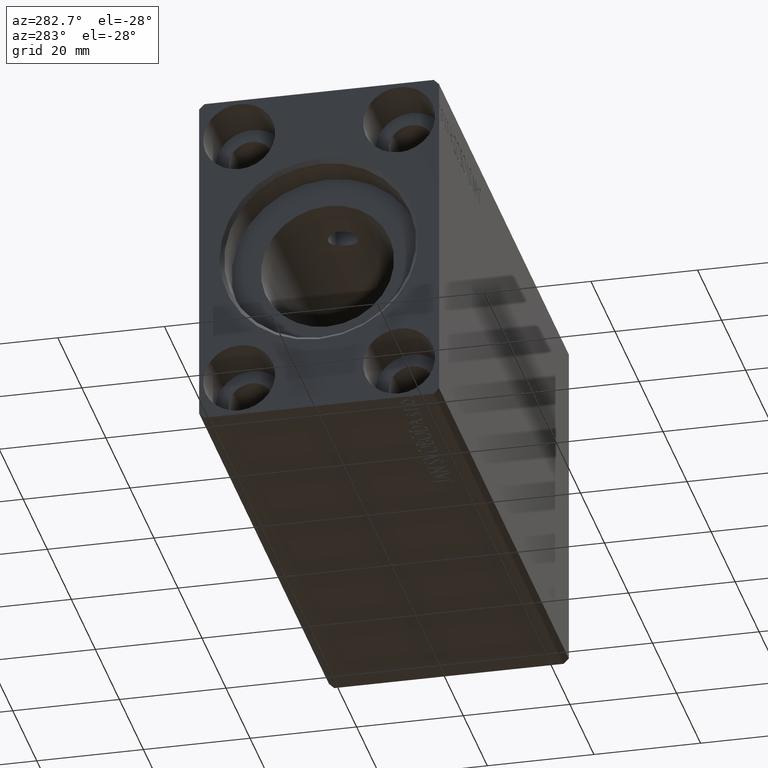
[diagram: clean part render]
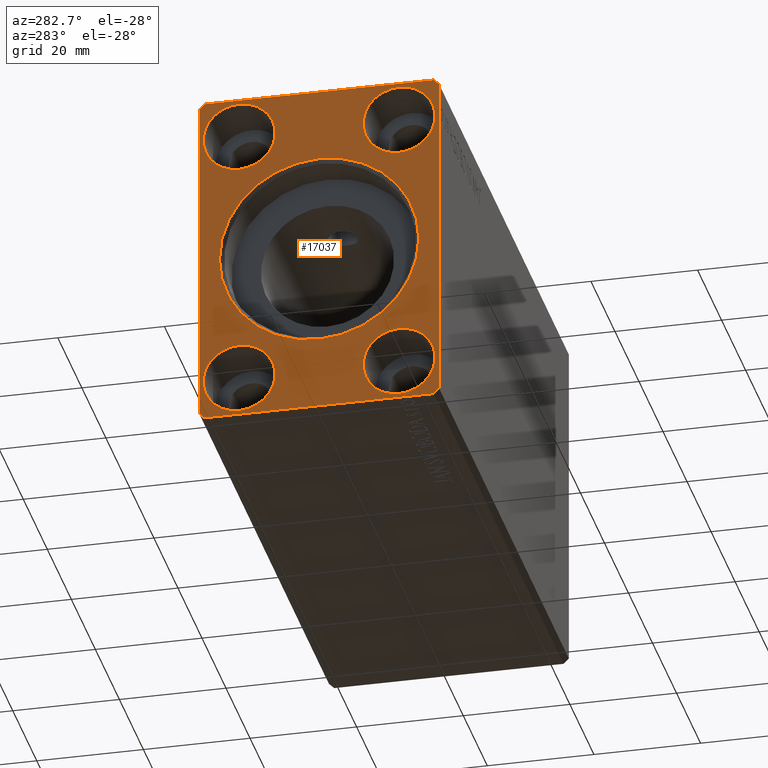
[diagram: same view with one face highlighted and labeled with its STEP entity id]
A machine part, auxiliary view. The second image highlights one B-rep face of the part: STEP entity #17037.
In plain terms, the highlighted planar face has unit normal (1, 0, 0).
Its self-contained STEP definition (entity closure, byte-faithful):
#43 = DIRECTION ( 'NONE',  ( 0.000000000000000000, -0.7071067811865474617, -0.7071067811865474617 ) ) ;
#204 = CARTESIAN_POINT ( 'NONE',  ( 0.000000000000000000, -21.50000000000001776, -32.50000000000000711 ) ) ;
#427 = CIRCLE ( 'NONE', #34810, 18.69999999999996732 ) ;
#645 = DIRECTION ( 'NONE',  ( 1.000000000000000000, -0.000000000000000000, -0.000000000000000000 ) ) ;
#1593 = LINE ( 'NONE', #15362, #40458 ) ;
#1906 = EDGE_CURVE ( 'NONE', #17388, #14199, #427, .T. ) ;
#2584 = CIRCLE ( 'NONE', #26666, 18.69999999999996732 ) ;
#2662 = CARTESIAN_POINT ( 'NONE',  ( -1.084202172485504434E-16, 2.290089514405546166E-15, -18.69999999999996732 ) ) ;
#3034 = DIRECTION ( 'NONE',  ( 0.000000000000000000, 0.000000000000000000, -1.000000000000000000 ) ) ;
#3358 = FACE_BOUND ( 'NONE', #23072, .T. ) ;
#3448 = LINE ( 'NONE', #204, #4233 ) ;
#3623 = LINE ( 'NONE', #32501, #42099 ) ;
#3801 = DIRECTION ( 'NONE',  ( 0.000000000000000000, 0.000000000000000000, -1.000000000000000000 ) ) ;
#3821 = VECTOR ( 'NONE', #39773, 1000.000000000000114 ) ;
#4214 = ORIENTED_EDGE ( 'NONE', *, *, #19113, .F. ) ;
#4233 = VECTOR ( 'NONE', #13344, 1000.000000000000000 ) ;
#4444 = VERTEX_POINT ( 'NONE', #34597 ) ;
#4529 = AXIS2_PLACEMENT_3D ( 'NONE', #7031, #39553, #3801 ) ;
#4907 = AXIS2_PLACEMENT_3D ( 'NONE', #34683, #38335, #5172 ) ;
#5172 = DIRECTION ( 'NONE',  ( 0.000000000000000000, 0.000000000000000000, -1.000000000000000000 ) ) ;
#5271 = ORIENTED_EDGE ( 'NONE', *, *, #8080, .F. ) ;
#5836 = VECTOR ( 'NONE', #25411, 1000.000000000000000 ) ;
#5950 = DIRECTION ( 'NONE',  ( 1.000000000000000000, -0.000000000000000000, -0.000000000000000000 ) ) ;
#7031 = CARTESIAN_POINT ( 'NONE',  ( 0.000000000000000000, 15.00000000000000000, 25.00000000000000000 ) ) ;
#7273 = EDGE_CURVE ( 'NONE', #8201, #19441, #1593, .T. ) ;
#7882 = AXIS2_PLACEMENT_3D ( 'NONE', #40540, #31475, #28029 ) ;
#7991 = ORIENTED_EDGE ( 'NONE', *, *, #30091, .F. ) ;
#8057 = DIRECTION ( 'NONE',  ( 0.000000000000000000, 0.000000000000000000, 1.000000000000000000 ) ) ;
#8080 = EDGE_CURVE ( 'NONE', #9394, #21452, #26139, .T. ) ;
#8201 = VERTEX_POINT ( 'NONE', #30445 ) ;
#8874 = VERTEX_POINT ( 'NONE', #41877 ) ;
#8904 = CARTESIAN_POINT ( 'NONE',  ( 0.000000000000000000, -22.50000000000001776, 31.50000000000000000 ) ) ;
#9024 = DIRECTION ( 'NONE',  ( 0.000000000000000000, 0.000000000000000000, -1.000000000000000000 ) ) ;
#9160 = FACE_BOUND ( 'NONE', #29638, .T. ) ;
#9394 = VERTEX_POINT ( 'NONE', #35103 ) ;
#9511 = CARTESIAN_POINT ( 'NONE',  ( 0.000000000000000000, -21.50000000000001776, -32.50000000000000711 ) ) ;
#9541 = VERTEX_POINT ( 'NONE', #41989 ) ;
#9756 = CARTESIAN_POINT ( 'NONE',  ( 0.000000000000000000, -22.50000000000001421, -31.50000000000000711 ) ) ;
#9876 = ORIENTED_EDGE ( 'NONE', *, *, #40047, .T. ) ;
#10172 = EDGE_CURVE ( 'NONE', #22041, #4444, #37901, .T. ) ;
#10339 = EDGE_LOOP ( 'NONE', ( #9876, #18728 ) ) ;
#10447 = VERTEX_POINT ( 'NONE', #29087 ) ;
#10922 = VERTEX_POINT ( 'NONE', #29878 ) ;
#11245 = VERTEX_POINT ( 'NONE', #15511 ) ;
#11509 = DIRECTION ( 'NONE',  ( 0.000000000000000000, -1.000000000000000000, 0.000000000000000000 ) ) ;
#11636 = EDGE_CURVE ( 'NONE', #21452, #10447, #3448, .T. ) ;
#12395 = FACE_BOUND ( 'NONE', #33113, .T. ) ;
#12428 = EDGE_LOOP ( 'NONE', ( #7991, #42378 ) ) ;
#12829 = CARTESIAN_POINT ( 'NONE',  ( 0.000000000000000000, 0.000000000000000000, 0.000000000000000000 ) ) ;
#12908 = LINE ( 'NONE', #35747, #5836 ) ;
#13344 = DIRECTION ( 'NONE',  ( 0.000000000000000000, 1.000000000000000000, 1.613696256722610912E-16 ) ) ;
#13912 = CARTESIAN_POINT ( 'NONE',  ( 0.000000000000000000, 22.49999999999999645, 31.50000000000000000 ) ) ;
#14199 = VERTEX_POINT ( 'NONE', #28520 ) ;
#14557 = VECTOR ( 'NONE', #22046, 1000.000000000000000 ) ;
#14761 = VECTOR ( 'NONE', #43, 1000.000000000000114 ) ;
#14935 = CARTESIAN_POINT ( 'NONE',  ( 0.000000000000000000, -15.00000000000000000, 25.00000000000000000 ) ) ;
#15362 = CARTESIAN_POINT ( 'NONE',  ( 0.000000000000000000, 21.49999999999999645, 32.50000000000000000 ) ) ;
#15423 = FACE_BOUND ( 'NONE', #12428, .T. ) ;
#15511 = CARTESIAN_POINT ( 'NONE',  ( 0.000000000000000000, -15.00000000000000000, 31.75000000000000711 ) ) ;
#15545 = EDGE_CURVE ( 'NONE', #10922, #29847, #18670, .T. ) ;
#15908 = DIRECTION ( 'NONE',  ( 0.000000000000000000, 0.7071067811865474617, 0.7071067811865474617 ) ) ;
#16262 = ORIENTED_EDGE ( 'NONE', *, *, #30262, .F. ) ;
#16335 = VERTEX_POINT ( 'NONE', #21341 ) ;
#17037 = ADVANCED_FACE ( 'NONE', ( #15423, #3358, #29640, #25758, #9160, #12395 ), #32011, .F. ) ;
#17078 = ORIENTED_EDGE ( 'NONE', *, *, #33922, .F. ) ;
#17157 = LINE ( 'NONE', #13912, #3821 ) ;
#17381 = EDGE_CURVE ( 'NONE', #42383, #9394, #38417, .T. ) ;
#17388 = VERTEX_POINT ( 'NONE', #2662 ) ;
#17965 = EDGE_CURVE ( 'NONE', #17970, #11245, #20785, .T. ) ;
#17970 = VERTEX_POINT ( 'NONE', #35295 ) ;
#18670 = CIRCLE ( 'NONE', #4907, 6.750000000000015987 ) ;
#18728 = ORIENTED_EDGE ( 'NONE', *, *, #1906, .T. ) ;
#18881 = CIRCLE ( 'NONE', #21627, 6.749999999999999112 ) ;
#19090 = DIRECTION ( 'NONE',  ( 0.000000000000000000, 0.000000000000000000, -1.000000000000000000 ) ) ;
#19113 = EDGE_CURVE ( 'NONE', #10447, #9541, #3623, .T. ) ;
#19428 = CARTESIAN_POINT ( 'NONE',  ( 0.000000000000000000, 15.00000000000000000, -25.00000000000000000 ) ) ;
#19441 = VERTEX_POINT ( 'NONE', #31546 ) ;
#20079 = DIRECTION ( 'NONE',  ( 0.000000000000000000, 0.000000000000000000, 1.000000000000000000 ) ) ;
#20785 = CIRCLE ( 'NONE', #40027, 6.750000000000006217 ) ;
#20964 = CIRCLE ( 'NONE', #26547, 6.750000000000006217 ) ;
#21341 = CARTESIAN_POINT ( 'NONE',  ( 0.000000000000000000, 22.49999999999999645, 31.50000000000000000 ) ) ;
#21452 = VERTEX_POINT ( 'NONE', #9511 ) ;
#21627 = AXIS2_PLACEMENT_3D ( 'NONE', #32556, #645, #3034 ) ;
#21658 = AXIS2_PLACEMENT_3D ( 'NONE', #29012, #5950, #19090 ) ;
#21740 = CARTESIAN_POINT ( 'NONE',  ( 0.000000000000000000, -15.00000000000000000, 25.00000000000000000 ) ) ;
#21823 = DIRECTION ( 'NONE',  ( -1.000000000000000000, 0.000000000000000000, 0.000000000000000000 ) ) ;
#22041 = VERTEX_POINT ( 'NONE', #30790 ) ;
#22046 = DIRECTION ( 'NONE',  ( 0.000000000000000000, 5.507058653894625853E-17, -1.000000000000000000 ) ) ;
#22170 = CARTESIAN_POINT ( 'NONE',  ( 0.000000000000000000, 0.000000000000000000, 0.000000000000000000 ) ) ;
#22430 = ORIENTED_EDGE ( 'NONE', *, *, #15545, .T. ) ;
#22450 = DIRECTION ( 'NONE',  ( -1.000000000000000000, 0.000000000000000000, 0.000000000000000000 ) ) ;
#22691 = ORIENTED_EDGE ( 'NONE', *, *, #11636, .F. ) ;
#22902 = DIRECTION ( 'NONE',  ( 0.000000000000000000, 0.7071067811865451302, -0.7071067811865500152 ) ) ;
#23072 = EDGE_LOOP ( 'NONE', ( #16262, #26470 ) ) ;
#24399 = ORIENTED_EDGE ( 'NONE', *, *, #17381, .F. ) ;
#25293 = EDGE_CURVE ( 'NONE', #39229, #8874, #18881, .T. ) ;
#25381 = ORIENTED_EDGE ( 'NONE', *, *, #25293, .T. ) ;
#25411 = DIRECTION ( 'NONE',  ( 0.000000000000000000, 0.000000000000000000, 1.000000000000000000 ) ) ;
#25758 = FACE_OUTER_BOUND ( 'NONE', #35268, .T. ) ;
#26139 = LINE ( 'NONE', #9756, #27383 ) ;
#26274 = AXIS2_PLACEMENT_3D ( 'NONE', #12829, #42552, #32877 ) ;
#26447 = CIRCLE ( 'NONE', #7882, 6.749999999999992006 ) ;
#26470 = ORIENTED_EDGE ( 'NONE', *, *, #10172, .F. ) ;
#26547 = AXIS2_PLACEMENT_3D ( 'NONE', #14935, #21823, #8057 ) ;
#26666 = AXIS2_PLACEMENT_3D ( 'NONE', #22170, #38541, #9024 ) ;
#26727 = EDGE_CURVE ( 'NONE', #8874, #39229, #40242, .T. ) ;
#27184 = ORIENTED_EDGE ( 'NONE', *, *, #30934, .F. ) ;
#27383 = VECTOR ( 'NONE', #22902, 1000.000000000000114 ) ;
#27925 = CARTESIAN_POINT ( 'NONE',  ( 0.000000000000000000, 0.000000000000000000, 0.000000000000000000 ) ) ;
#28029 = DIRECTION ( 'NONE',  ( 0.000000000000000000, 0.000000000000000000, 1.000000000000000000 ) ) ;
#28520 = CARTESIAN_POINT ( 'NONE',  ( -1.084202172485504434E-16, 0.000000000000000000, 18.69999999999996732 ) ) ;
#29012 = CARTESIAN_POINT ( 'NONE',  ( 0.000000000000000000, -15.00000000000000000, -25.00000000000000000 ) ) ;
#29087 = CARTESIAN_POINT ( 'NONE',  ( 0.000000000000000000, 21.49999999999999645, -32.50000000000000000 ) ) ;
#29367 = LINE ( 'NONE', #35172, #14761 ) ;
#29638 = EDGE_LOOP ( 'NONE', ( #25381, #39150 ) ) ;
#29640 = FACE_BOUND ( 'NONE', #10339, .T. ) ;
#29847 = VERTEX_POINT ( 'NONE', #37826 ) ;
#29878 = CARTESIAN_POINT ( 'NONE',  ( 0.000000000000000000, 15.00000000000000000, 18.24999999999998579 ) ) ;
#30091 = EDGE_CURVE ( 'NONE', #11245, #17970, #20964, .T. ) ;
#30262 = EDGE_CURVE ( 'NONE', #4444, #22041, #26447, .T. ) ;
#30445 = CARTESIAN_POINT ( 'NONE',  ( 0.000000000000000000, 21.49999999999999645, 32.50000000000000000 ) ) ;
#30790 = CARTESIAN_POINT ( 'NONE',  ( 0.000000000000000000, 15.00000000000000000, -31.74999999999999289 ) ) ;
#30934 = EDGE_CURVE ( 'NONE', #19441, #42383, #29367, .T. ) ;
#31366 = DIRECTION ( 'NONE',  ( 0.000000000000000000, 0.000000000000000000, -1.000000000000000000 ) ) ;
#31436 = ORIENTED_EDGE ( 'NONE', *, *, #33538, .F. ) ;
#31475 = DIRECTION ( 'NONE',  ( -1.000000000000000000, 0.000000000000000000, 0.000000000000000000 ) ) ;
#31546 = CARTESIAN_POINT ( 'NONE',  ( 0.000000000000000000, -21.50000000000001421, 32.50000000000000000 ) ) ;
#31855 = DIRECTION ( 'NONE',  ( -1.000000000000000000, 0.000000000000000000, 0.000000000000000000 ) ) ;
#32011 = PLANE ( 'NONE',  #26274 ) ;
#32501 = CARTESIAN_POINT ( 'NONE',  ( 0.000000000000000000, 21.49999999999999645, -32.50000000000000000 ) ) ;
#32556 = CARTESIAN_POINT ( 'NONE',  ( 0.000000000000000000, -15.00000000000000000, -25.00000000000000000 ) ) ;
#32877 = DIRECTION ( 'NONE',  ( 0.000000000000000000, 0.000000000000000000, -1.000000000000000000 ) ) ;
#33113 = EDGE_LOOP ( 'NONE', ( #40042, #22430 ) ) ;
#33114 = AXIS2_PLACEMENT_3D ( 'NONE', #19428, #22450, #20079 ) ;
#33538 = EDGE_CURVE ( 'NONE', #9541, #16335, #12908, .T. ) ;
#33870 = EDGE_CURVE ( 'NONE', #29847, #10922, #36854, .T. ) ;
#33922 = EDGE_CURVE ( 'NONE', #16335, #8201, #17157, .T. ) ;
#34597 = CARTESIAN_POINT ( 'NONE',  ( 0.000000000000000000, 15.00000000000000000, -18.25000000000001066 ) ) ;
#34683 = CARTESIAN_POINT ( 'NONE',  ( 0.000000000000000000, 15.00000000000000000, 25.00000000000000000 ) ) ;
#34810 = AXIS2_PLACEMENT_3D ( 'NONE', #27925, #40642, #31366 ) ;
#35103 = CARTESIAN_POINT ( 'NONE',  ( 0.000000000000000000, -22.50000000000001421, -31.50000000000000711 ) ) ;
#35172 = CARTESIAN_POINT ( 'NONE',  ( 0.000000000000000000, -21.50000000000001421, 32.50000000000000000 ) ) ;
#35268 = EDGE_LOOP ( 'NONE', ( #17078, #31436, #4214, #22691, #5271, #24399, #27184, #35319 ) ) ;
#35295 = CARTESIAN_POINT ( 'NONE',  ( 0.000000000000000000, -15.00000000000000000, 18.24999999999999645 ) ) ;
#35319 = ORIENTED_EDGE ( 'NONE', *, *, #7273, .F. ) ;
#35747 = CARTESIAN_POINT ( 'NONE',  ( 0.000000000000000000, 22.49999999999999645, -31.50000000000000000 ) ) ;
#36854 = CIRCLE ( 'NONE', #4529, 6.750000000000015987 ) ;
#36983 = CARTESIAN_POINT ( 'NONE',  ( 0.000000000000000000, -22.50000000000001776, 31.50000000000000000 ) ) ;
#37826 = CARTESIAN_POINT ( 'NONE',  ( 0.000000000000000000, 15.00000000000000000, 31.75000000000001421 ) ) ;
#37901 = CIRCLE ( 'NONE', #33114, 6.749999999999992006 ) ;
#38335 = DIRECTION ( 'NONE',  ( 1.000000000000000000, -0.000000000000000000, -0.000000000000000000 ) ) ;
#38417 = LINE ( 'NONE', #8904, #14557 ) ;
#38541 = DIRECTION ( 'NONE',  ( 1.000000000000000000, 0.000000000000000000, 0.000000000000000000 ) ) ;
#39150 = ORIENTED_EDGE ( 'NONE', *, *, #26727, .T. ) ;
#39229 = VERTEX_POINT ( 'NONE', #39508 ) ;
#39508 = CARTESIAN_POINT ( 'NONE',  ( 0.000000000000000000, -15.00000000000000000, -18.25000000000000355 ) ) ;
#39553 = DIRECTION ( 'NONE',  ( 1.000000000000000000, -0.000000000000000000, -0.000000000000000000 ) ) ;
#39773 = DIRECTION ( 'NONE',  ( 0.000000000000000000, -0.7071067811865474617, 0.7071067811865474617 ) ) ;
#40027 = AXIS2_PLACEMENT_3D ( 'NONE', #21740, #31855, #41761 ) ;
#40042 = ORIENTED_EDGE ( 'NONE', *, *, #33870, .T. ) ;
#40047 = EDGE_CURVE ( 'NONE', #14199, #17388, #2584, .T. ) ;
#40242 = CIRCLE ( 'NONE', #21658, 6.749999999999999112 ) ;
#40458 = VECTOR ( 'NONE', #11509, 1000.000000000000000 ) ;
#40540 = CARTESIAN_POINT ( 'NONE',  ( 0.000000000000000000, 15.00000000000000000, -25.00000000000000000 ) ) ;
#40642 = DIRECTION ( 'NONE',  ( 1.000000000000000000, 0.000000000000000000, 0.000000000000000000 ) ) ;
#41761 = DIRECTION ( 'NONE',  ( 0.000000000000000000, 0.000000000000000000, 1.000000000000000000 ) ) ;
#41877 = CARTESIAN_POINT ( 'NONE',  ( 0.000000000000000000, -15.00000000000000000, -31.75000000000000000 ) ) ;
#41989 = CARTESIAN_POINT ( 'NONE',  ( 0.000000000000000000, 22.49999999999999645, -31.50000000000000000 ) ) ;
#42099 = VECTOR ( 'NONE', #15908, 1000.000000000000114 ) ;
#42378 = ORIENTED_EDGE ( 'NONE', *, *, #17965, .F. ) ;
#42383 = VERTEX_POINT ( 'NONE', #36983 ) ;
#42552 = DIRECTION ( 'NONE',  ( 1.000000000000000000, 0.000000000000000000, 0.000000000000000000 ) ) ;